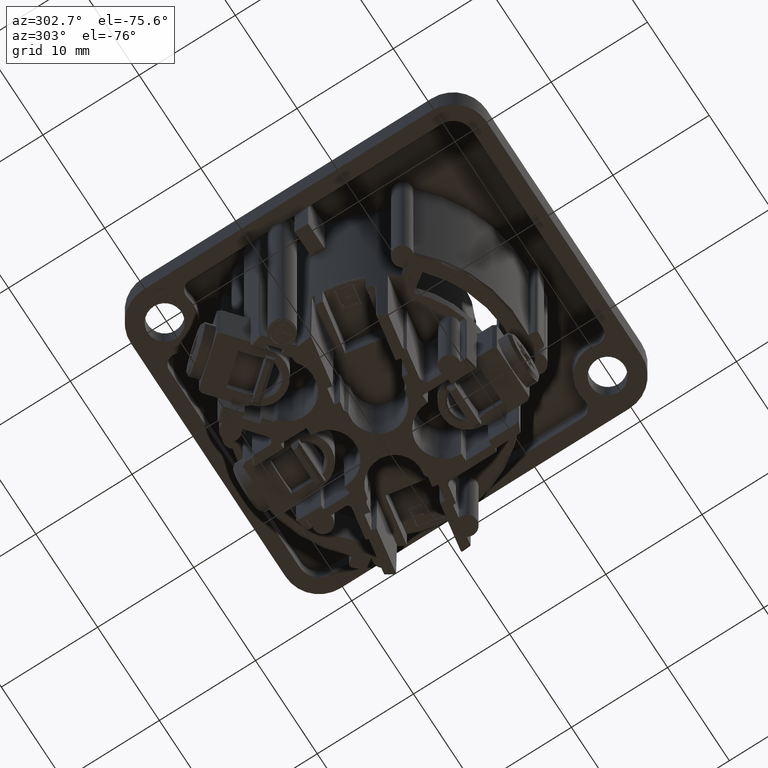
[diagram: clean part render]
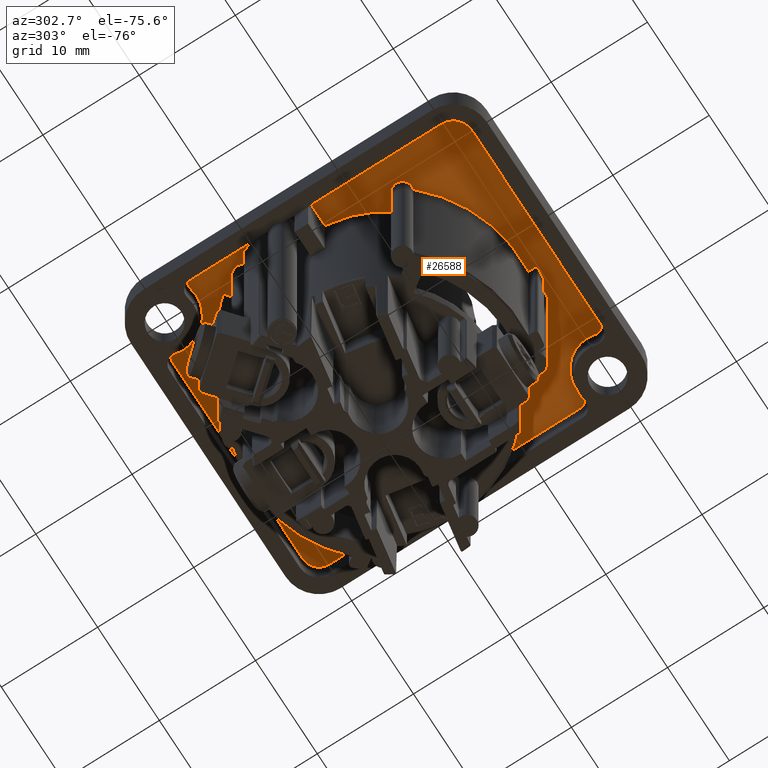
[diagram: same view with one face highlighted and labeled with its STEP entity id]
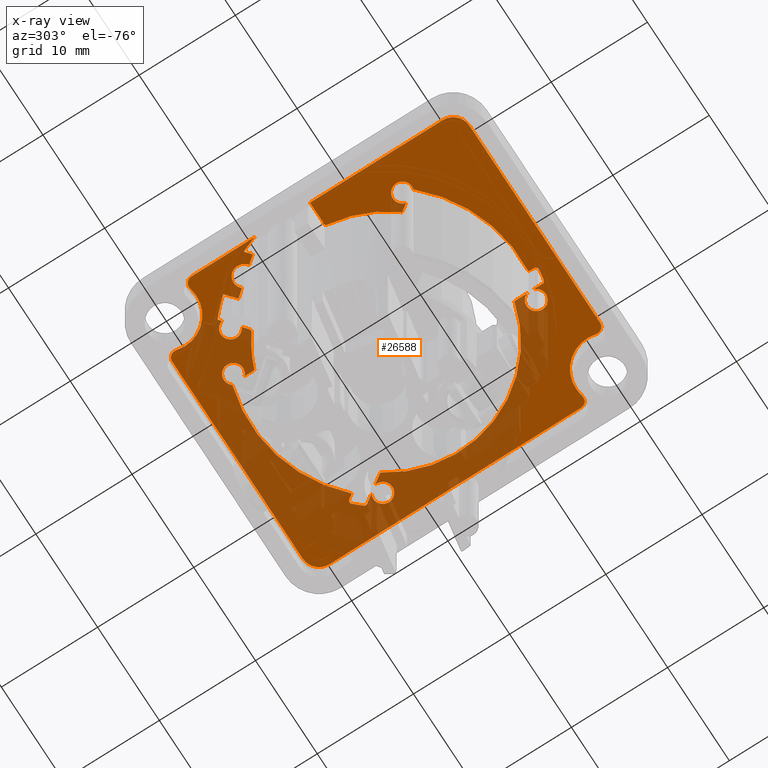
[diagram: x-ray of the same camera — body ghosted, the highlighted face saturated]
A machine part, auxiliary view. The second image highlights one B-rep face of the part: STEP entity #26588.
The next image is the same camera in x-ray: the body ghosted, the highlighted face saturated — about 46% of this face is hidden behind the body in this view.
In plain terms, the highlighted planar face has unit normal (0, 0, -1).
Its self-contained STEP definition (entity closure, byte-faithful):
#7277=CARTESIAN_POINT('',(-7.258909153330E0,9.680818038973E0,-4.5E0));
#7278=DIRECTION('',(0.E0,0.E0,-1.E0));
#7279=DIRECTION('',(5.999098473826E-1,-8.000676065267E-1,0.E0));
#7280=AXIS2_PLACEMENT_3D('',#7277,#7278,#7279);
#7282=CARTESIAN_POINT('',(0.E0,0.E0,-4.5E0));
#7283=DIRECTION('',(0.E0,0.E0,1.E0));
#7284=DIRECTION('',(-3.474576271186E-1,9.376956848344E-1,0.E0));
#7285=AXIS2_PLACEMENT_3D('',#7282,#7283,#7284);
#7287=DIRECTION('',(0.E0,-1.E0,0.E0));
#7288=VECTOR('',#7287,1.021048076100E0);
#7289=CARTESIAN_POINT('',(-4.1E0,1.208585715715E1,-4.5E0));
#7290=LINE('',#7289,#7288);
#7291=CARTESIAN_POINT('',(0.E0,0.E0,-4.5E0));
#7292=DIRECTION('',(0.E0,0.E0,1.E0));
#7293=DIRECTION('',(7.055115917948E-1,7.086983800201E-1,0.E0));
#7294=AXIS2_PLACEMENT_3D('',#7291,#7292,#7293);
#7296=DIRECTION('',(-5.735764363510E-1,-8.191520442890E-1,0.E0));
#7297=VECTOR('',#7296,5.554188954460E-1);
#7298=CARTESIAN_POINT('',(1.019573747586E1,1.037674984392E1,-4.5E0));
#7299=LINE('',#7298,#7297);
#7300=CARTESIAN_POINT('',(0.E0,0.E0,-4.5E0));
#7301=DIRECTION('',(0.E0,0.E0,1.E0));
#7302=DIRECTION('',(7.624454330848E-1,6.470525184003E-1,0.E0));
#7303=AXIS2_PLACEMENT_3D('',#7300,#7301,#7302);
#7305=DIRECTION('',(5.735764363510E-1,8.191520442890E-1,0.E0));
#7306=VECTOR('',#7305,9.748666912888E-1);
#7307=CARTESIAN_POINT('',(1.081828837362E1,8.476329794660E0,-4.5E0));
#7308=LINE('',#7307,#7306);
#7309=DIRECTION('',(5.735764363510E-1,8.191520442890E-1,0.E0));
#7310=VECTOR('',#7309,1.164069093503E0);
#7311=CARTESIAN_POINT('',(9.644081676769E0,6.799388841051E0,-4.5E0));
#7312=LINE('',#7311,#7310);
#7313=CARTESIAN_POINT('',(0.E0,0.E0,-4.5E0));
#7314=DIRECTION('',(0.E0,0.E0,1.E0));
#7315=DIRECTION('',(2.5E-1,-9.682458365519E-1,0.E0));
#7316=AXIS2_PLACEMENT_3D('',#7313,#7314,#7315);
#7318=DIRECTION('',(0.E0,1.E0,0.E0));
#7319=VECTOR('',#7318,1.362449228768E0);
#7320=CARTESIAN_POINT('',(2.95E0,-1.278775010008E1,-4.5E0));
#7321=LINE('',#7320,#7319);
#7322=DIRECTION('',(0.E0,1.E0,0.E0));
#7323=VECTOR('',#7322,9.452394349185E-1);
#7324=CARTESIAN_POINT('',(2.95E0,-1.435748933484E1,-4.5E0));
#7325=LINE('',#7324,#7323);
#7326=CARTESIAN_POINT('',(0.E0,0.E0,-4.5E0));
#7327=DIRECTION('',(0.E0,0.E0,1.E0));
#7328=DIRECTION('',(1.130136986301E-1,-9.935934298907E-1,0.E0));
#7329=AXIS2_PLACEMENT_3D('',#7326,#7327,#7328);
#7331=DIRECTION('',(0.E0,-1.E0,0.E0));
#7332=VECTOR('',#7331,5.717053773809E-1);
#7333=CARTESIAN_POINT('',(1.35E0,-1.393475869902E1,-4.5E0));
#7334=LINE('',#7333,#7332);
#7335=CARTESIAN_POINT('',(0.E0,0.E0,-4.5E0));
#7336=DIRECTION('',(0.E0,0.E0,1.E0));
#7337=DIRECTION('',(-7.371592422669E-1,-6.757190625848E-1,0.E0));
#7338=AXIS2_PLACEMENT_3D('',#7335,#7336,#7337);
#7340=DIRECTION('',(-5.735764363511E-1,-8.191520442890E-1,0.E0));
#7341=VECTOR('',#7340,9.175605143285E-1);
#7342=CARTESIAN_POINT('',(-9.102917003902E0,-7.508455368455E0,-4.5E0));
#7343=LINE('',#7342,#7341);
#7344=CARTESIAN_POINT('',(0.E0,0.E0,-4.5E0));
#7345=DIRECTION('',(0.E0,0.E0,1.E0));
#7346=DIRECTION('',(-9.932139317775E-1,-1.163017012904E-1,0.E0));
#7347=AXIS2_PLACEMENT_3D('',#7344,#7345,#7346);
#7349=CARTESIAN_POINT('',(-1.191856718133E1,-1.395620415485E0,-4.5E0));
#7350=DIRECTION('',(0.E0,0.E0,-1.E0));
#7351=DIRECTION('',(0.E0,1.E0,0.E0));
#7352=AXIS2_PLACEMENT_3D('',#7349,#7350,#7351);
#7354=DIRECTION('',(1.E0,0.E0,0.E0));
#7355=VECTOR('',#7354,2.281432818670E0);
#7356=CARTESIAN_POINT('',(-1.42E1,-1.195620415485E0,-4.5E0));
#7357=LINE('',#7356,#7355);
#7358=CARTESIAN_POINT('',(0.E0,0.E0,-4.5E0));
#7359=DIRECTION('',(0.E0,0.E0,1.E0));
#7360=DIRECTION('',(-9.133466741589E-1,4.071828247887E-1,0.E0));
#7361=AXIS2_PLACEMENT_3D('',#7358,#7359,#7360);
#7363=DIRECTION('',(-7.660444431190E-1,6.427876096865E-1,0.E0));
#7364=VECTOR('',#7363,8.248036635760E-1);
#7365=CARTESIAN_POINT('',(-1.297702918182E1,5.536850513980E0,-4.5E0));
#7366=LINE('',#7365,#7364);
#7367=DIRECTION('',(-6.427876096865E-1,-7.660444431190E-1,0.E0));
#7368=VECTOR('',#7367,1.008945464241E0);
#7369=CARTESIAN_POINT('',(-1.232849153856E1,6.309747580272E0,-4.5E0));
#7370=LINE('',#7369,#7368);
#7371=CARTESIAN_POINT('',(-1.173442142352E1,7.235534109886E0,-4.5E0));
#7372=DIRECTION('',(0.E0,0.E0,1.E0));
#7373=DIRECTION('',(7.350568719225E-1,6.780054535470E-1,0.E0));
#7374=AXIS2_PLACEMENT_3D('',#7371,#7372,#7373);
#7376=DIRECTION('',(-6.427876096865E-1,-7.660444431190E-1,0.E0));
#7377=VECTOR('',#7376,1.008945464241E0);
#7378=CARTESIAN_POINT('',(-1.027732122114E1,8.754237175080E0,-4.5E0));
#7379=LINE('',#7378,#7377);
#7380=DIRECTION('',(7.660444431190E-1,-6.427876096865E-1,0.E0));
#7381=VECTOR('',#7380,1.399664425751E0);
#7382=CARTESIAN_POINT('',(-1.134952637672E1,9.653924125672E0,-4.5E0));
#7383=LINE('',#7382,#7381);
#7384=CARTESIAN_POINT('',(0.E0,0.E0,-4.5E0));
#7385=DIRECTION('',(0.E0,0.E0,1.E0));
#7386=DIRECTION('',(-6.542616794066E-1,7.562682426626E-1,0.E0));
#7387=AXIS2_PLACEMENT_3D('',#7384,#7385,#7386);
#7389=DIRECTION('',(-7.660444431190E-1,6.427876096865E-1,0.E0));
#7390=VECTOR('',#7389,3.296326981212E-1);
#7391=CARTESIAN_POINT('',(-9.366280797583E0,1.105749062162E1,-4.5E0));
#7392=LINE('',#7391,#7390);
#7393=DIRECTION('',(-7.660444431190E-1,6.427876096865E-1,0.E0));
#7394=VECTOR('',#7393,6.877967830499E-1);
#7395=CARTESIAN_POINT('',(-7.451745436236E0,9.451004706037E0,-4.5E0));
#7396=LINE('',#7395,#7394);
#7409=DIRECTION('',(0.E0,1.E0,0.E0));
#7410=VECTOR('',#7409,6.613703015234E0);
#7411=CARTESIAN_POINT('',(-1.42E1,4.513313638559E0,-4.5E0));
#7412=LINE('',#7411,#7410);
#8111=CARTESIAN_POINT('',(-1.35E1,1.112701665379E1,-4.5E0));
#8112=DIRECTION('',(0.E0,0.E0,-1.E0));
#8113=DIRECTION('',(-1.E0,0.E0,0.E0));
#8114=AXIS2_PLACEMENT_3D('',#8111,#8112,#8113);
#8126=CARTESIAN_POINT('',(-1.25E1,1.5E1,-4.5E0));
#8127=DIRECTION('',(0.E0,0.E0,1.E0));
#8128=DIRECTION('',(-2.5E-1,-9.682458365519E-1,0.E0));
#8129=AXIS2_PLACEMENT_3D('',#8126,#8127,#8128);
#8149=CARTESIAN_POINT('',(-8.627016653793E0,1.6E1,-4.5E0));
#8150=DIRECTION('',(0.E0,0.E0,-1.E0));
#8151=DIRECTION('',(-9.682458365519E-1,-2.5E-1,0.E0));
#8152=AXIS2_PLACEMENT_3D('',#8149,#8150,#8151);
#8163=DIRECTION('',(1.E0,0.E0,0.E0));
#8164=VECTOR('',#8163,2.112701665379E1);
#8165=CARTESIAN_POINT('',(-8.627016653793E0,1.67E1,-4.5E0));
#8166=LINE('',#8165,#8164);
#8185=CARTESIAN_POINT('',(1.25E1,1.5E1,-4.500000000010E0));
#8186=DIRECTION('',(0.E0,0.E0,-1.E0));
#8187=DIRECTION('',(0.E0,1.E0,0.E0));
#8188=AXIS2_PLACEMENT_3D('',#8185,#8186,#8187);
#8199=DIRECTION('',(0.E0,-1.E0,0.E0));
#8200=VECTOR('',#8199,2.612701665379E1);
#8201=CARTESIAN_POINT('',(1.42E1,1.5E1,-4.5E0));
#8202=LINE('',#8201,#8200);
#8221=CARTESIAN_POINT('',(1.35E1,-1.112701665379E1,-4.5E0));
#8222=DIRECTION('',(0.E0,0.E0,-1.E0));
#8223=DIRECTION('',(1.E0,0.E0,0.E0));
#8224=AXIS2_PLACEMENT_3D('',#8221,#8222,#8223);
#8236=CARTESIAN_POINT('',(1.25E1,-1.5E1,-4.5E0));
#8237=DIRECTION('',(0.E0,0.E0,1.E0));
#8238=DIRECTION('',(2.5E-1,9.682458365519E-1,0.E0));
#8239=AXIS2_PLACEMENT_3D('',#8236,#8237,#8238);
#8259=CARTESIAN_POINT('',(8.627016653793E0,-1.6E1,-4.5E0));
#8260=DIRECTION('',(0.E0,0.E0,-1.E0));
#8261=DIRECTION('',(9.682458365519E-1,2.5E-1,0.E0));
#8262=AXIS2_PLACEMENT_3D('',#8259,#8260,#8261);
#8273=DIRECTION('',(-1.E0,0.E0,0.E0));
#8274=VECTOR('',#8273,2.112701665379E1);
#8275=CARTESIAN_POINT('',(8.627016653793E0,-1.67E1,-4.5E0));
#8276=LINE('',#8275,#8274);
#8295=CARTESIAN_POINT('',(-1.25E1,-1.5E1,-4.500000000010E0));
#8296=DIRECTION('',(0.E0,0.E0,-1.E0));
#8297=DIRECTION('',(0.E0,-1.E0,0.E0));
#8298=AXIS2_PLACEMENT_3D('',#8295,#8296,#8297);
#8309=DIRECTION('',(0.E0,1.E0,0.E0));
#8310=VECTOR('',#8309,1.380437958451E1);
#8311=CARTESIAN_POINT('',(-1.42E1,-1.5E1,-4.5E0));
#8312=LINE('',#8311,#8310);
#8366=CARTESIAN_POINT('',(-1.06E1,-8.5E0,-4.5E0));
#8367=DIRECTION('',(0.E0,0.E0,1.E0));
#8368=DIRECTION('',(9.707919061533E-1,2.399230604742E-1,0.E0));
#8369=AXIS2_PLACEMENT_3D('',#8366,#8367,#8368);
#8408=CARTESIAN_POINT('',(1.65E0,-1.450646407640E1,-4.5E0));
#8409=DIRECTION('',(0.E0,0.E0,1.E0));
#8410=DIRECTION('',(-1.E0,0.E0,0.E0));
#8411=AXIS2_PLACEMENT_3D('',#8408,#8409,#8410);
#8436=CARTESIAN_POINT('',(1.113170332304E1,9.446966768644E0,-4.5E0));
#8437=DIRECTION('',(0.E0,0.E0,1.E0));
#8438=DIRECTION('',(8.191520442890E-1,-5.735764363511E-1,0.E0));
#8439=AXIS2_PLACEMENT_3D('',#8436,#8437,#8438);
#8458=CARTESIAN_POINT('',(1.13E1,7.6E0,-4.5E0));
#8459=DIRECTION('',(0.E0,0.E0,1.E0));
#8460=DIRECTION('',(-9.882357209135E-1,1.529384186876E-1,0.E0));
#8461=AXIS2_PLACEMENT_3D('',#8458,#8459,#8460);
#8481=CARTESIAN_POINT('',(1.044148308915E1,1.020467691302E1,-4.5E0));
#8482=DIRECTION('',(0.E0,0.E0,1.E0));
#8483=DIRECTION('',(7.151700745990E-1,6.989504734944E-1,0.E0));
#8484=AXIS2_PLACEMENT_3D('',#8481,#8482,#8483);
#8524=CARTESIAN_POINT('',(-4.8E0,1.28E1,-4.5E0));
#8525=DIRECTION('',(0.E0,0.E0,1.E0));
#8526=DIRECTION('',(7.898011784499E-1,6.133629419187E-1,0.E0));
#8527=AXIS2_PLACEMENT_3D('',#8524,#8525,#8526);
#8546=CARTESIAN_POINT('',(2.65E0,-1.435748933484E1,-4.5E0));
#8547=DIRECTION('',(0.E0,0.E0,1.E0));
#8548=DIRECTION('',(1.815068493151E-1,-9.833896804684E-1,0.E0));
#8549=AXIS2_PLACEMENT_3D('',#8546,#8547,#8548);
#8559=CARTESIAN_POINT('',(3.9E0,-1.31E1,-4.5E0));
#8560=DIRECTION('',(0.E0,0.E0,1.E0));
#8561=DIRECTION('',(-9.5E-1,-3.122498999199E-1,0.E0));
#8562=AXIS2_PLACEMENT_3D('',#8559,#8560,#8561);
#8673=CARTESIAN_POINT('',(-9.683072855218E0,1.119276999141E1,-4.5E0));
#8674=DIRECTION('',(0.E0,0.E0,1.E0));
#8675=DIRECTION('',(6.427876096865E-1,7.660444431190E-1,0.E0));
#8676=AXIS2_PLACEMENT_3D('',#8673,#8674,#8675);
#8919=CARTESIAN_POINT('',(-8.4E0,1.08E1,-4.5E0));
#8920=DIRECTION('',(0.E0,0.E0,1.E0));
#8921=DIRECTION('',(4.213716601132E-1,-9.068880438364E-1,0.E0));
#8922=AXIS2_PLACEMENT_3D('',#8919,#8920,#8921);
#13624=CARTESIAN_POINT('',(2.95E0,-1.142530087131E1,-4.5E0));
#13625=CARTESIAN_POINT('',(9.644081676769E0,6.799388841051E0,-4.5E0));
#13626=VERTEX_POINT('',#13624);
#13627=VERTEX_POINT('',#13625);
#13651=CARTESIAN_POINT('',(-9.102917003902E0,-7.508455368455E0,-4.5E0));
#13653=VERTEX_POINT('',#13651);
#13660=CARTESIAN_POINT('',(-1.134952637672E1,9.653924125672E0,-4.5E0));
#13661=CARTESIAN_POINT('',(-1.027732122114E1,8.754237175080E0,-4.5E0));
#13662=VERTEX_POINT('',#13660);
#13663=VERTEX_POINT('',#13661);
#13664=CARTESIAN_POINT('',(-1.092585886440E1,7.981340108788E0,-4.5E0));
#13665=VERTEX_POINT('',#13664);
#13666=CARTESIAN_POINT('',(-1.232849153856E1,6.309747580272E0,-4.5E0));
#13667=VERTEX_POINT('',#13666);
#13668=CARTESIAN_POINT('',(-1.297702918182E1,5.536850513980E0,-4.5E0));
#13669=VERTEX_POINT('',#13668);
#13670=CARTESIAN_POINT('',(-1.360886544497E1,6.067024089351E0,-4.5E0));
#13671=VERTEX_POINT('',#13670);
#13688=CARTESIAN_POINT('',(-1.171992439497E1,-1.372360075227E0,-4.5E0));
#13689=VERTEX_POINT('',#13688);
#13692=CARTESIAN_POINT('',(-1.191856718133E1,-1.195620415485E0,-4.5E0));
#13693=VERTEX_POINT('',#13692);
#14153=CARTESIAN_POINT('',(-7.978628339887E0,9.893111956164E0,-4.5E0));
#14154=CARTESIAN_POINT('',(-9.366280797583E0,1.105749062162E1,-4.5E0));
#14155=VERTEX_POINT('',#14153);
#14156=VERTEX_POINT('',#14154);
#14165=CARTESIAN_POINT('',(-9.629208093847E0,-8.260076939526E0,-4.5E0));
#14167=VERTEX_POINT('',#14165);
#14169=CARTESIAN_POINT('',(1.031176427909E1,7.752938418688E0,-4.5E0));
#14171=VERTEX_POINT('',#14169);
#14173=CARTESIAN_POINT('',(1.081828837362E1,8.476329794660E0,-4.5E0));
#14175=VERTEX_POINT('',#14173);
#14177=CARTESIAN_POINT('',(2.95E0,-1.341224989992E1,-4.5E0));
#14179=VERTEX_POINT('',#14177);
#14181=CARTESIAN_POINT('',(2.95E0,-1.278775010008E1,-4.5E0));
#14183=VERTEX_POINT('',#14181);
#14186=CARTESIAN_POINT('',(-4.1E0,1.208585715715E1,-4.5E0));
#14188=VERTEX_POINT('',#14186);
#14189=CARTESIAN_POINT('',(-4.1E0,1.106480908105E1,-4.5E0));
#14190=VERTEX_POINT('',#14189);
#14191=CARTESIAN_POINT('',(-4.010198821550E0,1.341336294192E1,-4.5E0));
#14192=VERTEX_POINT('',#14191);
#14193=CARTESIAN_POINT('',(-1.032022939174E1,-9.460066876187E0,-4.5E0));
#14194=VERTEX_POINT('',#14193);
#14195=CARTESIAN_POINT('',(1.35E0,-1.393475869902E1,-4.5E0));
#14196=VERTEX_POINT('',#14195);
#14197=CARTESIAN_POINT('',(9.877162285127E0,9.921777320282E0,-4.5E0));
#14198=VERTEX_POINT('',#14197);
#14426=CARTESIAN_POINT('',(-1.42E1,-1.195620415485E0,-4.5E0));
#14427=VERTEX_POINT('',#14426);
#14430=CARTESIAN_POINT('',(-1.42E1,-1.5E1,-4.5E0));
#14431=VERTEX_POINT('',#14430);
#14432=CARTESIAN_POINT('',(-1.25E1,-1.669999758687E1,-4.500000000010E0));
#14433=VERTEX_POINT('',#14432);
#14434=CARTESIAN_POINT('',(8.627016653793E0,-1.67E1,-4.5E0));
#14435=VERTEX_POINT('',#14434);
#14436=CARTESIAN_POINT('',(9.304788544843E0,-1.582500005023E1,-4.5E0));
#14437=VERTEX_POINT('',#14436);
#14438=CARTESIAN_POINT('',(1.332499986664E1,-1.180478925588E1,-4.5E0));
#14439=VERTEX_POINT('',#14438);
#14440=CARTESIAN_POINT('',(1.419999979908E1,-1.112701665379E1,-4.5E0));
#14441=VERTEX_POINT('',#14440);
#14442=CARTESIAN_POINT('',(1.42E1,1.5E1,-4.5E0));
#14443=VERTEX_POINT('',#14442);
#14444=CARTESIAN_POINT('',(1.25E1,1.669999758687E1,-4.500000000010E0));
#14445=VERTEX_POINT('',#14444);
#14446=CARTESIAN_POINT('',(-8.627016653793E0,1.67E1,-4.5E0));
#14447=VERTEX_POINT('',#14446);
#14448=CARTESIAN_POINT('',(-9.304788544843E0,1.582500005023E1,-4.5E0));
#14449=VERTEX_POINT('',#14448);
#14450=CARTESIAN_POINT('',(-1.332499986664E1,1.180478925588E1,-4.5E0));
#14451=VERTEX_POINT('',#14450);
#14452=CARTESIAN_POINT('',(-1.419999979908E1,1.112701665379E1,-4.5E0));
#14453=VERTEX_POINT('',#14452);
#14454=CARTESIAN_POINT('',(-1.42E1,4.513313638559E0,-4.5E0));
#14455=VERTEX_POINT('',#14454);
#14560=CARTESIAN_POINT('',(1.35E0,-1.450646407640E1,-4.5E0));
#14561=VERTEX_POINT('',#14560);
#14562=CARTESIAN_POINT('',(1.019573747586E1,1.037674984392E1,-4.5E0));
#14563=VERTEX_POINT('',#14562);
#14564=CARTESIAN_POINT('',(1.137744893632E1,9.274893837738E0,-4.5E0));
#14566=VERTEX_POINT('',#14564);
#14568=CARTESIAN_POINT('',(1.136043695296E1,9.641082524164E0,-4.5E0));
#14570=VERTEX_POINT('',#14568);
#14578=CARTESIAN_POINT('',(1.683904109589E0,-1.480454210537E1,-4.5E0));
#14579=CARTESIAN_POINT('',(2.704452054795E0,-1.465250623898E1,-4.5E0));
#14580=VERTEX_POINT('',#14578);
#14581=VERTEX_POINT('',#14579);
#14582=CARTESIAN_POINT('',(1.065603411153E1,1.041436205507E1,-4.5E0));
#14583=VERTEX_POINT('',#14582);
#14587=CARTESIAN_POINT('',(2.95E0,-1.435748933484E1,-4.5E0));
#14589=VERTEX_POINT('',#14587);
#14862=CARTESIAN_POINT('',(-9.748499023159E0,1.126839681567E1,-4.5E0));
#14863=VERTEX_POINT('',#14862);
#14865=CARTESIAN_POINT('',(-9.618794094249E0,1.126937443572E1,-4.5E0));
#14867=VERTEX_POINT('',#14865);
#15059=CARTESIAN_POINT('',(-7.078936199116E0,9.440797757015E0,-4.5E0));
#15060=CARTESIAN_POINT('',(-7.451745436236E0,9.451004706037E0,-4.5E0));
#15061=VERTEX_POINT('',#15059);
#15062=VERTEX_POINT('',#15060);
#26490=CARTESIAN_POINT('',(0.E0,0.E0,-4.5E0));
#26491=DIRECTION('',(0.E0,0.E0,-1.E0));
#26492=DIRECTION('',(-1.E0,0.E0,0.E0));
#26493=AXIS2_PLACEMENT_3D('',#26490,#26491,#26492);
#26494=PLANE('',#26493);
#26496=ORIENTED_EDGE('',*,*,#26495,.F.);
#26497=ORIENTED_EDGE('',*,*,#18575,.F.);
#26499=ORIENTED_EDGE('',*,*,#26498,.F.);
#26501=ORIENTED_EDGE('',*,*,#26500,.F.);
#26503=ORIENTED_EDGE('',*,*,#26502,.F.);
#26505=ORIENTED_EDGE('',*,*,#26504,.F.);
#26507=ORIENTED_EDGE('',*,*,#26506,.F.);
#26509=ORIENTED_EDGE('',*,*,#26508,.F.);
#26511=ORIENTED_EDGE('',*,*,#26510,.F.);
#26513=ORIENTED_EDGE('',*,*,#26512,.F.);
#26515=ORIENTED_EDGE('',*,*,#26514,.F.);
#26517=ORIENTED_EDGE('',*,*,#26516,.F.);
#26518=ORIENTED_EDGE('',*,*,#19056,.F.);
#26520=ORIENTED_EDGE('',*,*,#26519,.F.);
#26522=ORIENTED_EDGE('',*,*,#26521,.F.);
#26524=ORIENTED_EDGE('',*,*,#26523,.F.);
#26526=ORIENTED_EDGE('',*,*,#26525,.F.);
#26528=ORIENTED_EDGE('',*,*,#26527,.F.);
#26530=ORIENTED_EDGE('',*,*,#26529,.F.);
#26532=ORIENTED_EDGE('',*,*,#26531,.F.);
#26534=ORIENTED_EDGE('',*,*,#26533,.F.);
#26536=ORIENTED_EDGE('',*,*,#26535,.F.);
#26538=ORIENTED_EDGE('',*,*,#26537,.F.);
#26540=ORIENTED_EDGE('',*,*,#26539,.F.);
#26542=ORIENTED_EDGE('',*,*,#26541,.F.);
#26544=ORIENTED_EDGE('',*,*,#26543,.F.);
#26546=ORIENTED_EDGE('',*,*,#26545,.F.);
#26548=ORIENTED_EDGE('',*,*,#26547,.F.);
#26550=ORIENTED_EDGE('',*,*,#26549,.F.);
#26552=ORIENTED_EDGE('',*,*,#26551,.F.);
#26554=ORIENTED_EDGE('',*,*,#26553,.F.);
#26556=ORIENTED_EDGE('',*,*,#26555,.F.);
#26558=ORIENTED_EDGE('',*,*,#26557,.F.);
#26560=ORIENTED_EDGE('',*,*,#26559,.F.);
#26562=ORIENTED_EDGE('',*,*,#26561,.F.);
#26564=ORIENTED_EDGE('',*,*,#26563,.F.);
#26566=ORIENTED_EDGE('',*,*,#26565,.F.);
#26568=ORIENTED_EDGE('',*,*,#26567,.F.);
#26570=ORIENTED_EDGE('',*,*,#26569,.F.);
#26571=ORIENTED_EDGE('',*,*,#26300,.F.);
#26572=ORIENTED_EDGE('',*,*,#26392,.F.);
#26573=ORIENTED_EDGE('',*,*,#26407,.F.);
#26574=ORIENTED_EDGE('',*,*,#26422,.F.);
#26575=ORIENTED_EDGE('',*,*,#26435,.F.);
#26576=ORIENTED_EDGE('',*,*,#26449,.F.);
#26577=ORIENTED_EDGE('',*,*,#26326,.F.);
#26579=ORIENTED_EDGE('',*,*,#26578,.F.);
#26581=ORIENTED_EDGE('',*,*,#26580,.F.);
#26583=ORIENTED_EDGE('',*,*,#26582,.F.);
#26585=ORIENTED_EDGE('',*,*,#26584,.F.);
#26586=EDGE_LOOP('',(#26496,#26497,#26499,#26501,#26503,#26505,#26507,#26509,
#26511,#26513,#26515,#26517,#26518,#26520,#26522,#26524,#26526,#26528,#26530,
#26532,#26534,#26536,#26538,#26540,#26542,#26544,#26546,#26548,#26550,#26552,
#26554,#26556,#26558,#26560,#26562,#26564,#26566,#26568,#26570,#26571,#26572,
#26573,#26574,#26575,#26576,#26577,#26579,#26581,#26583,#26585));
#26587=FACE_OUTER_BOUND('',#26586,.F.);
#7281=CIRCLE('',#7280,3.E-1);
#7286=CIRCLE('',#7285,1.18E1);
#7295=CIRCLE('',#7294,1.4E1);
#7304=CIRCLE('',#7303,1.49E1);
#7317=CIRCLE('',#7316,1.18E1);
#7330=CIRCLE('',#7329,1.49E1);
#7339=CIRCLE('',#7338,1.4E1);
#7348=CIRCLE('',#7347,1.18E1);
#7353=CIRCLE('',#7352,2.E-1);
#7362=CIRCLE('',#7361,1.49E1);
#7375=CIRCLE('',#7374,1.1E0);
#7388=CIRCLE('',#7387,1.49E1);
#8115=CIRCLE('',#8114,6.999997990844E-1);
#8130=CIRCLE('',#8129,3.299999466555E0);
#8153=CIRCLE('',#8152,6.999997990844E-1);
#8189=CIRCLE('',#8188,1.699997586874E0);
#8225=CIRCLE('',#8224,6.999997990844E-1);
#8240=CIRCLE('',#8239,3.299999466555E0);
#8263=CIRCLE('',#8262,6.999997990844E-1);
#8299=CIRCLE('',#8298,1.699997586874E0);
#8370=CIRCLE('',#8369,1.E0);
#8412=CIRCLE('',#8411,3.E-1);
#8440=CIRCLE('',#8439,3.E-1);
#8462=CIRCLE('',#8461,1.E0);
#8485=CIRCLE('',#8484,3.E-1);
#8528=CIRCLE('',#8527,1.E0);
#8550=CIRCLE('',#8549,3.E-1);
#8563=CIRCLE('',#8562,1.E0);
#8677=CIRCLE('',#8676,1.E-1);
#8923=CIRCLE('',#8922,1.E0);
#18575=EDGE_CURVE('',#14190,#15061,#7286,.T.);
#19056=EDGE_CURVE('',#13626,#13627,#7317,.T.);
#26300=EDGE_CURVE('',#13671,#14455,#7362,.T.);
#26326=EDGE_CURVE('',#14863,#13662,#7388,.T.);
#26392=EDGE_CURVE('',#13669,#13671,#7366,.T.);
#26407=EDGE_CURVE('',#13667,#13669,#7370,.T.);
#26422=EDGE_CURVE('',#13665,#13667,#7375,.T.);
#26435=EDGE_CURVE('',#13663,#13665,#7379,.T.);
#26449=EDGE_CURVE('',#13662,#13663,#7383,.T.);
#26495=EDGE_CURVE('',#15061,#15062,#7281,.T.);
#26498=EDGE_CURVE('',#14188,#14190,#7290,.T.);
#26500=EDGE_CURVE('',#14192,#14188,#8528,.T.);
#26502=EDGE_CURVE('',#14198,#14192,#7295,.T.);
#26504=EDGE_CURVE('',#14563,#14198,#7299,.T.);
#26506=EDGE_CURVE('',#14583,#14563,#8485,.T.);
#26508=EDGE_CURVE('',#14570,#14583,#7304,.T.);
#26510=EDGE_CURVE('',#14566,#14570,#8440,.T.);
#26512=EDGE_CURVE('',#14175,#14566,#7308,.T.);
#26514=EDGE_CURVE('',#14171,#14175,#8462,.T.);
#26516=EDGE_CURVE('',#13627,#14171,#7312,.T.);
#26519=EDGE_CURVE('',#14183,#13626,#7321,.T.);
#26521=EDGE_CURVE('',#14179,#14183,#8563,.T.);
#26523=EDGE_CURVE('',#14589,#14179,#7325,.T.);
#26525=EDGE_CURVE('',#14581,#14589,#8550,.T.);
#26527=EDGE_CURVE('',#14580,#14581,#7330,.T.);
#26529=EDGE_CURVE('',#14561,#14580,#8412,.T.);
#26531=EDGE_CURVE('',#14196,#14561,#7334,.T.);
#26533=EDGE_CURVE('',#14194,#14196,#7339,.T.);
#26535=EDGE_CURVE('',#14167,#14194,#8370,.T.);
#26537=EDGE_CURVE('',#13653,#14167,#7343,.T.);
#26539=EDGE_CURVE('',#13689,#13653,#7348,.T.);
#26541=EDGE_CURVE('',#13693,#13689,#7353,.T.);
#26543=EDGE_CURVE('',#14427,#13693,#7357,.T.);
#26545=EDGE_CURVE('',#14431,#14427,#8312,.T.);
#26547=EDGE_CURVE('',#14433,#14431,#8299,.T.);
#26549=EDGE_CURVE('',#14435,#14433,#8276,.T.);
#26551=EDGE_CURVE('',#14437,#14435,#8263,.T.);
#26553=EDGE_CURVE('',#14439,#14437,#8240,.T.);
#26555=EDGE_CURVE('',#14441,#14439,#8225,.T.);
#26557=EDGE_CURVE('',#14443,#14441,#8202,.T.);
#26559=EDGE_CURVE('',#14445,#14443,#8189,.T.);
#26561=EDGE_CURVE('',#14447,#14445,#8166,.T.);
#26563=EDGE_CURVE('',#14449,#14447,#8153,.T.);
#26565=EDGE_CURVE('',#14451,#14449,#8130,.T.);
#26567=EDGE_CURVE('',#14453,#14451,#8115,.T.);
#26569=EDGE_CURVE('',#14455,#14453,#7412,.T.);
#26578=EDGE_CURVE('',#14867,#14863,#8677,.T.);
#26580=EDGE_CURVE('',#14156,#14867,#7392,.T.);
#26582=EDGE_CURVE('',#14155,#14156,#8923,.T.);
#26584=EDGE_CURVE('',#15062,#14155,#7396,.T.);
#26588=ADVANCED_FACE('',(#26587),#26494,.T.);